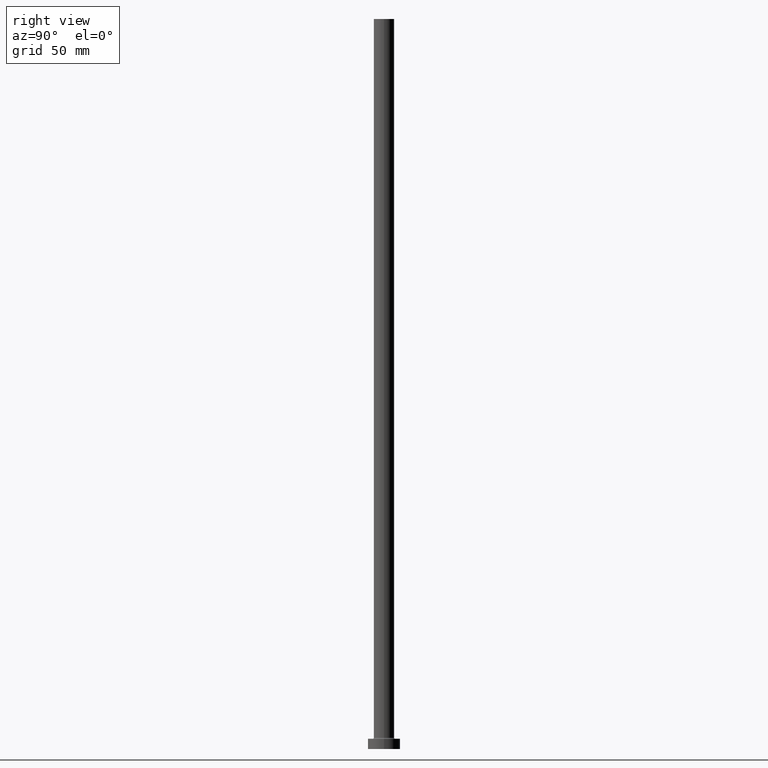
[diagram: clean part render]
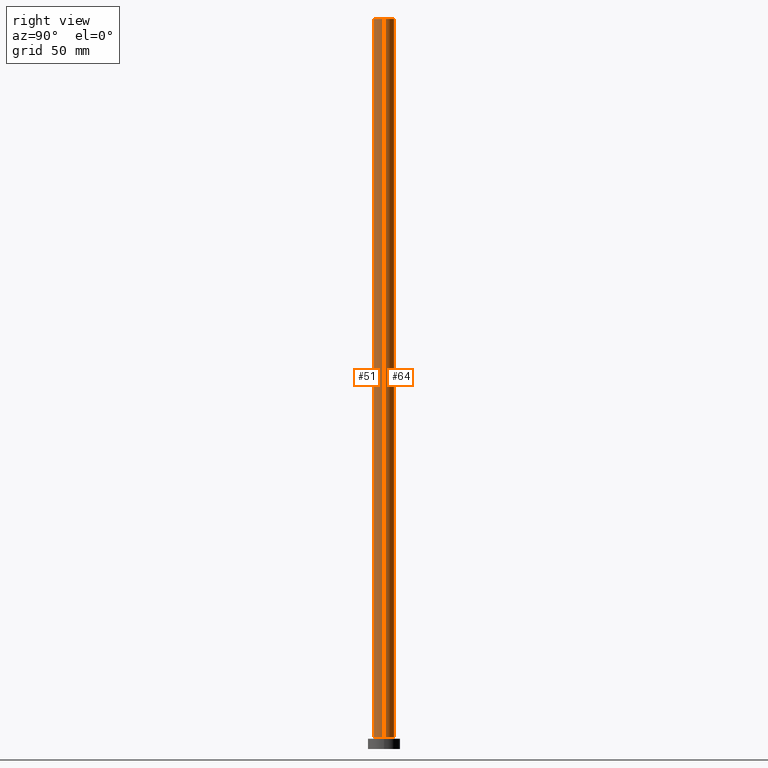
[diagram: same view with one multi-face feature highlighted, each face labeled with its STEP entity id]
A machine part, right view. The highlighted faces form ONE feature: a constant-radius fillet chain: 2 tangent blend faces with common blend radius 7 mm. The faces share edges in the B-rep.
Their STEP definitions:
[1] entity #51 (Cylinder):
#8 = CARTESIAN_POINT ( 'NONE',  ( -7.000000000000000888, 0.000000000000000000, 500.0000000000000000 ) ) ;
#15 = CARTESIAN_POINT ( 'NONE',  ( 0.000000000000000000, 0.000000000000000000, 500.0000000000000000 ) ) ;
#51 = ADVANCED_FACE ( 'NONE', ( #411 ), #379, .T. ) ;
#70 = EDGE_CURVE ( 'NONE', #115, #396, #260, .T. ) ;
#73 = ORIENTED_EDGE ( 'NONE', *, *, #70, .T. ) ;
#81 = DIRECTION ( 'NONE',  ( -0.000000000000000000, -0.000000000000000000, -1.000000000000000000 ) ) ;
#90 = DIRECTION ( 'NONE',  ( -0.000000000000000000, -0.000000000000000000, -1.000000000000000000 ) ) ;
#92 = ORIENTED_EDGE ( 'NONE', *, *, #262, .F. ) ;
#100 = DIRECTION ( 'NONE',  ( 1.000000000000000000, 0.000000000000000000, 0.000000000000000000 ) ) ;
#115 = VERTEX_POINT ( 'NONE', #136 ) ;
#124 = VECTOR ( 'NONE', #375, 1000.000000000000000 ) ;
#127 = ORIENTED_EDGE ( 'NONE', *, *, #333, .T. ) ;
#129 = AXIS2_PLACEMENT_3D ( 'NONE', #236, #244, #100 ) ;
#136 = CARTESIAN_POINT ( 'NONE',  ( -7.000000000000000888, 0.000000000000000000, 7.699999999999985079 ) ) ;
#160 = CARTESIAN_POINT ( 'NONE',  ( 7.000000000000000888, 8.572527594031474176E-16, 7.699999999999985079 ) ) ;
#162 = CARTESIAN_POINT ( 'NONE',  ( 0.000000000000000000, 0.000000000000000000, 500.0000000000000000 ) ) ;
#185 = VERTEX_POINT ( 'NONE', #238 ) ;
#189 = LINE ( 'NONE', #8, #124 ) ;
#232 = EDGE_LOOP ( 'NONE', ( #92, #367, #127, #73 ) ) ;
#236 = CARTESIAN_POINT ( 'NONE',  ( 0.000000000000000000, 0.000000000000000000, 7.699999999999985079 ) ) ;
#238 = CARTESIAN_POINT ( 'NONE',  ( -7.000000000000000888, 0.000000000000000000, 500.0000000000000000 ) ) ;
#244 = DIRECTION ( 'NONE',  ( 0.000000000000000000, 0.000000000000000000, 1.000000000000000000 ) ) ;
#260 = CIRCLE ( 'NONE', #129, 7.000000000000000888 ) ;
#261 = CARTESIAN_POINT ( 'NONE',  ( 7.000000000000000888, 8.572527594031474176E-16, 500.0000000000000000 ) ) ;
#262 = EDGE_CURVE ( 'NONE', #405, #396, #297, .T. ) ;
#297 = LINE ( 'NONE', #261, #430 ) ;
#299 = DIRECTION ( 'NONE',  ( -1.000000000000000000, 0.000000000000000000, 0.000000000000000000 ) ) ;
#303 = AXIS2_PLACEMENT_3D ( 'NONE', #162, #452, #449 ) ;
#333 = EDGE_CURVE ( 'NONE', #185, #115, #189, .T. ) ;
#367 = ORIENTED_EDGE ( 'NONE', *, *, #415, .F. ) ;
#375 = DIRECTION ( 'NONE',  ( -0.000000000000000000, -0.000000000000000000, -1.000000000000000000 ) ) ;
#379 = CYLINDRICAL_SURFACE ( 'NONE', #441, 7.000000000000000888 ) ;
#388 = CIRCLE ( 'NONE', #303, 7.000000000000000888 ) ;
#396 = VERTEX_POINT ( 'NONE', #160 ) ;
#405 = VERTEX_POINT ( 'NONE', #410 ) ;
#410 = CARTESIAN_POINT ( 'NONE',  ( 7.000000000000000888, 8.572527594031474176E-16, 500.0000000000000000 ) ) ;
#411 = FACE_OUTER_BOUND ( 'NONE', #232, .T. ) ;
#415 = EDGE_CURVE ( 'NONE', #185, #405, #388, .T. ) ;
#430 = VECTOR ( 'NONE', #81, 1000.000000000000000 ) ;
#441 = AXIS2_PLACEMENT_3D ( 'NONE', #15, #90, #299 ) ;
#449 = DIRECTION ( 'NONE',  ( 1.000000000000000000, 0.000000000000000000, 0.000000000000000000 ) ) ;
#452 = DIRECTION ( 'NONE',  ( 0.000000000000000000, 0.000000000000000000, 1.000000000000000000 ) ) ;
[2] entity #64 (Cylinder):
#8 = CARTESIAN_POINT ( 'NONE',  ( -7.000000000000000888, 0.000000000000000000, 500.0000000000000000 ) ) ;
#39 = AXIS2_PLACEMENT_3D ( 'NONE', #389, #141, #67 ) ;
#41 = AXIS2_PLACEMENT_3D ( 'NONE', #305, #345, #444 ) ;
#64 = ADVANCED_FACE ( 'NONE', ( #266 ), #170, .T. ) ;
#67 = DIRECTION ( 'NONE',  ( 1.000000000000000000, 0.000000000000000000, 0.000000000000000000 ) ) ;
#81 = DIRECTION ( 'NONE',  ( -0.000000000000000000, -0.000000000000000000, -1.000000000000000000 ) ) ;
#103 = DIRECTION ( 'NONE',  ( -0.000000000000000000, -0.000000000000000000, -1.000000000000000000 ) ) ;
#115 = VERTEX_POINT ( 'NONE', #136 ) ;
#124 = VECTOR ( 'NONE', #375, 1000.000000000000000 ) ;
#136 = CARTESIAN_POINT ( 'NONE',  ( -7.000000000000000888, 0.000000000000000000, 7.699999999999985079 ) ) ;
#138 = CIRCLE ( 'NONE', #41, 7.000000000000000888 ) ;
#141 = DIRECTION ( 'NONE',  ( 0.000000000000000000, 0.000000000000000000, 1.000000000000000000 ) ) ;
#143 = CARTESIAN_POINT ( 'NONE',  ( 0.000000000000000000, 0.000000000000000000, 500.0000000000000000 ) ) ;
#152 = EDGE_LOOP ( 'NONE', ( #168, #181, #225, #295 ) ) ;
#160 = CARTESIAN_POINT ( 'NONE',  ( 7.000000000000000888, 8.572527594031474176E-16, 7.699999999999985079 ) ) ;
#168 = ORIENTED_EDGE ( 'NONE', *, *, #224, .F. ) ;
#170 = CYLINDRICAL_SURFACE ( 'NONE', #360, 7.000000000000000888 ) ;
#173 = CIRCLE ( 'NONE', #39, 7.000000000000000888 ) ;
#181 = ORIENTED_EDGE ( 'NONE', *, *, #262, .T. ) ;
#185 = VERTEX_POINT ( 'NONE', #238 ) ;
#189 = LINE ( 'NONE', #8, #124 ) ;
#224 = EDGE_CURVE ( 'NONE', #405, #185, #173, .T. ) ;
#225 = ORIENTED_EDGE ( 'NONE', *, *, #442, .T. ) ;
#238 = CARTESIAN_POINT ( 'NONE',  ( -7.000000000000000888, 0.000000000000000000, 500.0000000000000000 ) ) ;
#261 = CARTESIAN_POINT ( 'NONE',  ( 7.000000000000000888, 8.572527594031474176E-16, 500.0000000000000000 ) ) ;
#262 = EDGE_CURVE ( 'NONE', #405, #396, #297, .T. ) ;
#266 = FACE_OUTER_BOUND ( 'NONE', #152, .T. ) ;
#295 = ORIENTED_EDGE ( 'NONE', *, *, #333, .F. ) ;
#297 = LINE ( 'NONE', #261, #430 ) ;
#305 = CARTESIAN_POINT ( 'NONE',  ( 0.000000000000000000, 0.000000000000000000, 7.699999999999985079 ) ) ;
#333 = EDGE_CURVE ( 'NONE', #185, #115, #189, .T. ) ;
#345 = DIRECTION ( 'NONE',  ( 0.000000000000000000, 0.000000000000000000, 1.000000000000000000 ) ) ;
#360 = AXIS2_PLACEMENT_3D ( 'NONE', #143, #103, #413 ) ;
#375 = DIRECTION ( 'NONE',  ( -0.000000000000000000, -0.000000000000000000, -1.000000000000000000 ) ) ;
#389 = CARTESIAN_POINT ( 'NONE',  ( 0.000000000000000000, 0.000000000000000000, 500.0000000000000000 ) ) ;
#396 = VERTEX_POINT ( 'NONE', #160 ) ;
#405 = VERTEX_POINT ( 'NONE', #410 ) ;
#410 = CARTESIAN_POINT ( 'NONE',  ( 7.000000000000000888, 8.572527594031474176E-16, 500.0000000000000000 ) ) ;
#413 = DIRECTION ( 'NONE',  ( -1.000000000000000000, 0.000000000000000000, 0.000000000000000000 ) ) ;
#430 = VECTOR ( 'NONE', #81, 1000.000000000000000 ) ;
#442 = EDGE_CURVE ( 'NONE', #396, #115, #138, .T. ) ;
#444 = DIRECTION ( 'NONE',  ( 1.000000000000000000, 0.000000000000000000, 0.000000000000000000 ) ) ;